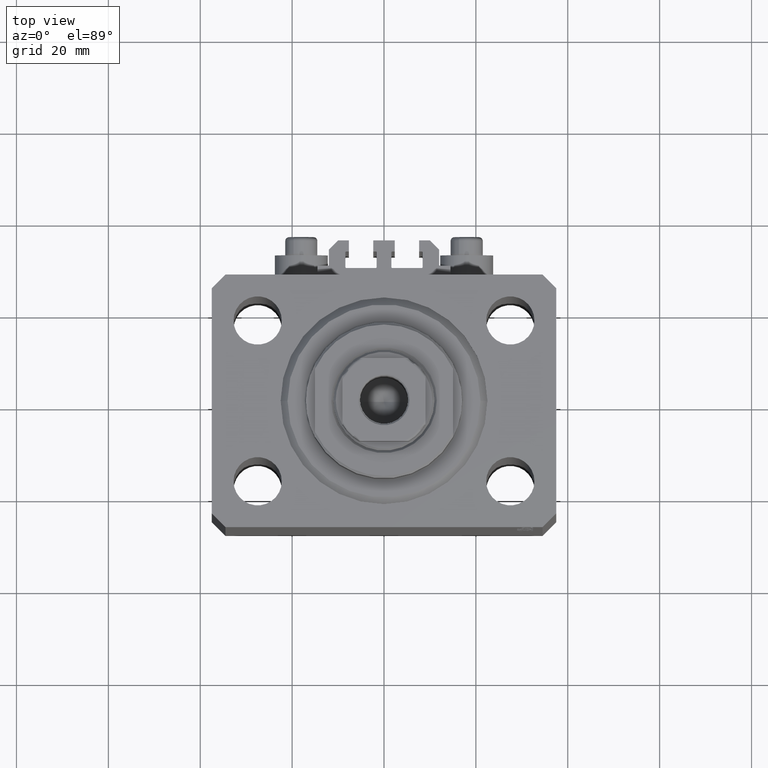
[diagram: clean part render]
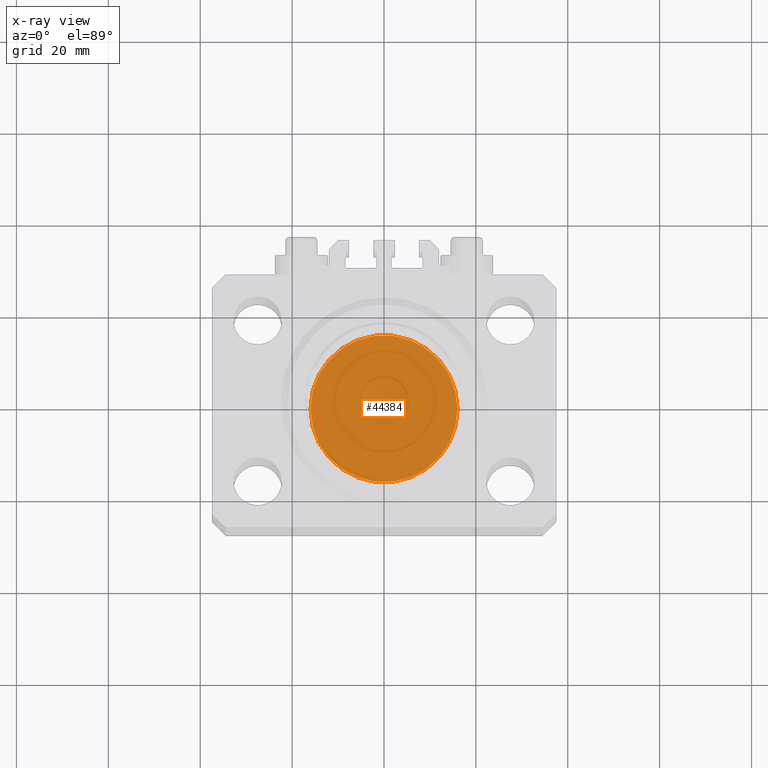
[diagram: x-ray — body ghosted, one internal face saturated and labeled with its STEP entity id]
A machine part, top view, then the same camera in x-ray: the body is ghosted and one INTERNAL B-rep face — a face not visible from any outside direction — is saturated and labeled: STEP entity #44384.
In plain terms, the highlighted planar face has unit normal (0, 0, 1).
Its self-contained STEP definition (entity closure, byte-faithful):
#1563 = AXIS2_PLACEMENT_3D ( 'NONE', #46552, #20973, #13074 ) ;
#2117 = PLANE ( 'NONE',  #6984 ) ;
#6984 = AXIS2_PLACEMENT_3D ( 'NONE', #16744, #9076, #23698 ) ;
#8453 = CIRCLE ( 'NONE', #1563, 16.00000000000000000 ) ;
#8719 = CARTESIAN_POINT ( 'NONE',  ( 0.000000000000000000, 0.000000000000000000, 0.000000000000000000 ) ) ;
#9076 = DIRECTION ( 'NONE',  ( 0.000000000000000000, 0.000000000000000000, 1.000000000000000000 ) ) ;
#11337 = VERTEX_POINT ( 'NONE', #38390 ) ;
#12074 = DIRECTION ( 'NONE',  ( 0.000000000000000000, 0.000000000000000000, 1.000000000000000000 ) ) ;
#13074 = DIRECTION ( 'NONE',  ( 1.000000000000000000, 0.000000000000000000, 0.000000000000000000 ) ) ;
#13653 = ORIENTED_EDGE ( 'NONE', *, *, #38752, .F. ) ;
#16744 = CARTESIAN_POINT ( 'NONE',  ( 0.000000000000000000, 0.000000000000000000, 0.000000000000000000 ) ) ;
#17807 = ORIENTED_EDGE ( 'NONE', *, *, #43305, .F. ) ;
#20201 = DIRECTION ( 'NONE',  ( 1.000000000000000000, 0.000000000000000000, 0.000000000000000000 ) ) ;
#20973 = DIRECTION ( 'NONE',  ( 0.000000000000000000, 0.000000000000000000, 1.000000000000000000 ) ) ;
#23698 = DIRECTION ( 'NONE',  ( 1.000000000000000000, 0.000000000000000000, -0.000000000000000000 ) ) ;
#26565 = CARTESIAN_POINT ( 'NONE',  ( 16.00000000000000000, 1.959434878635765131E-15, 0.000000000000000000 ) ) ;
#38390 = CARTESIAN_POINT ( 'NONE',  ( -16.00000000000000000, 0.000000000000000000, 0.000000000000000000 ) ) ;
#38741 = FACE_OUTER_BOUND ( 'NONE', #40646, .T. ) ;
#38752 = EDGE_CURVE ( 'NONE', #11337, #40805, #38995, .T. ) ;
#38995 = CIRCLE ( 'NONE', #46641, 16.00000000000000000 ) ;
#40646 = EDGE_LOOP ( 'NONE', ( #13653, #17807 ) ) ;
#40805 = VERTEX_POINT ( 'NONE', #26565 ) ;
#43305 = EDGE_CURVE ( 'NONE', #40805, #11337, #8453, .T. ) ;
#44384 = ADVANCED_FACE ( 'NONE', ( #38741 ), #2117, .F. ) ;
#46552 = CARTESIAN_POINT ( 'NONE',  ( 0.000000000000000000, 0.000000000000000000, 0.000000000000000000 ) ) ;
#46641 = AXIS2_PLACEMENT_3D ( 'NONE', #8719, #12074, #20201 ) ;